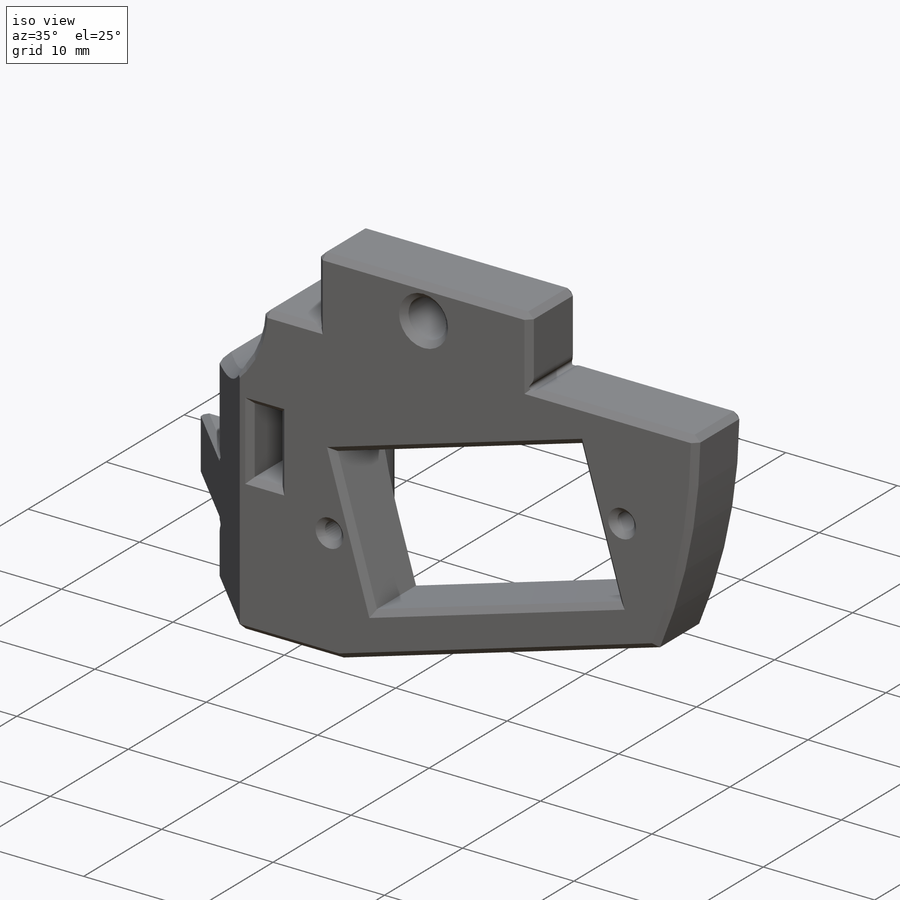
[diagram: iso view]
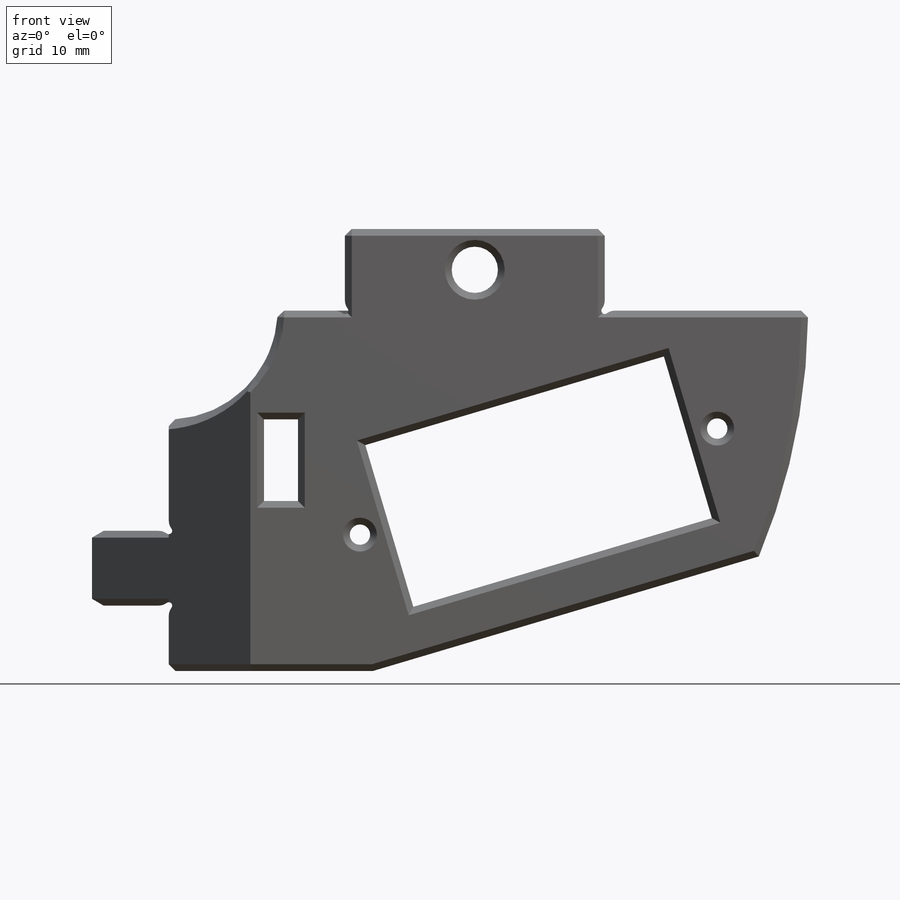
[diagram: front view]
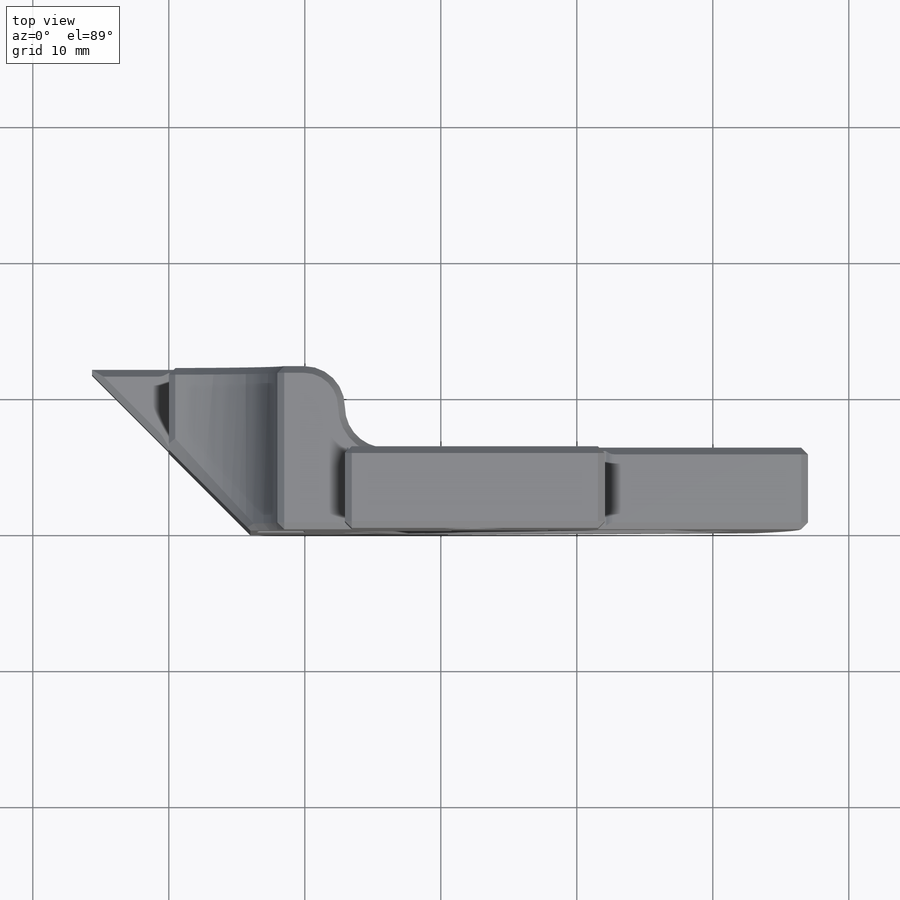
[diagram: top view]
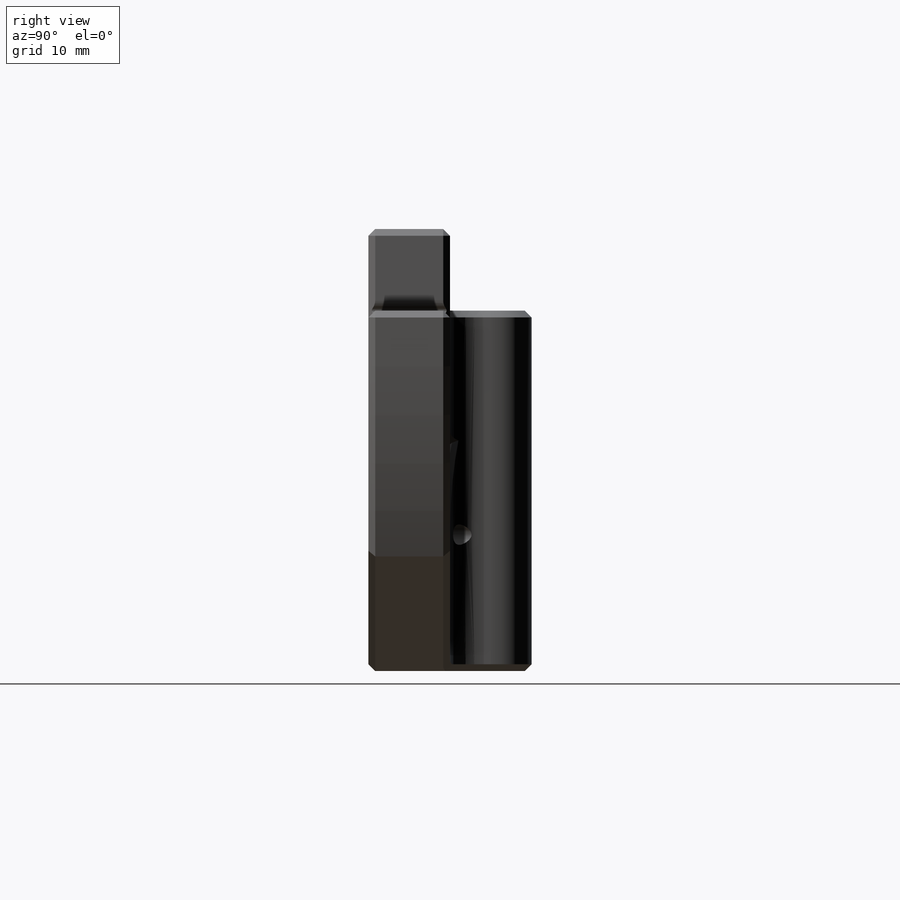
[diagram: right view]
SOLIDWORKS PART (.sldprt)
format: sldprt  version: not decoded by parser v0  size: 1,136,128 bytes
history: native  units: mm
features: sketch x14, cut_extrude x11, extrude x3, fillet x3, chamfer x2, move_body x2, material x1, plane x1 (+12 scaffold rows collapsed; 2 parser-record rows omitted)
feature tree (51):
  scaffold x12  (default folders/planes/origin — collapsed)
  material  "Material <not specified>"
  sketch  "Sketch1"  dims[c1.D1=~35.727519mm c1.D2=73.1125mm c2.D1=26.5mm c2.D2=47.0mm c2.D3=15.0mm c2.D4=17.0mm c2.D5=16.19mm c2.D6=5.5mm c2.D7=6.0mm]
  extrude  "Body"  Depth=6mm
  sketch  "Sketch2"  dims[c1.D1=6.0mm c1.D2=~17.048202mm c2.D1=0.6mm c2.D2=0.6mm]
  extrude  "Top Tab"  Depth=6mm
  sketch  "Sketch12"  dims[D1=15.94mm D2=5.5mm D3=6.0mm]
  extrude  "Boss-Extrude1"  Depth=6mm
  sketch  "Sketch5"  dims[D1=3.4mm D2=11.0mm D3=3.0mm]
  cut_extrude  "Back Screw Hole"  Depth=12mm
  plane  "Plane1"
  sketch  "Sketch4"  dims[c1.D1=3.4mm c1.D2=~6.101694mm c1.D3=~3.120688mm c2.D2=~6.101694mm c3.D2=90.0deg c4.D2=~6.101694mm c5.D2=90.0deg c6.D2=6.0mm c6.D3=2.5mm c6.D4=7.0mm]
  cut_extrude  "Screw and Nut Holes"  [1 undecoded]
  sketch  "Sketch7"  dims[D1=4.0mm D2=4.0mm]
  cut_extrude  "Switch Wire Relief"  [1 undecoded]
  sketch  "Sketch6"  dims[c1.D2=1.5mm c1.D3=1.5mm c1.D1=12.0mm c2.D2=22.5mm c2.D1=0.2mm]
  cut_extrude  "Servo Openings"  [1 undecoded]
  sketch  "Sketch10"  dims[D1=~9.699417mm]
  cut_extrude  "Rounded Corner"  [1 undecoded]
  sketch  "Sketch14"
  cut_extrude  "Cut-Extrude1"  [1 undecoded]
  sketch  "Sketch15"  dims[D1=6.0mm]
  cut_extrude  "Cut-Extrude2"  [1 undecoded]
  cut_extrude  "Cut-Extrude3"  [1 undecoded]
  sketch  "Sketch15<2>"
  sketch  "Sketch20"
  cut_extrude  "Cut-Extrude7"  [1 undecoded]
  fillet  "Fillet1"  Radius=3mm
  chamfer  "Chamfer1"  Distance=0.5mm Angle=45deg
  chamfer  "Chamfer2"  Distance=0.5mm Angle=45deg
  sketch  "Sketch17"  dims[D1=0.5mm]
  cut_extrude  "Cut-Extrude5"  [1 undecoded]
  fillet  "Fillet3"  Radius=1mm
  sketch  "Sketch18"  dims[D1=0.5mm]
  cut_extrude  "Cut-Extrude6"  [1 undecoded]
  fillet  "Fillet4"  Radius=1mm
  parser-record x2  (decoder bookkeeping rows leaked as tree rows — omitted from the tree; the rows remain in map.json)
  move_body  "Body-Move/Copy2"
  move_body  "Body-Move/Copy1"
decode coverage: 20 of 35 modeling features carry decoded parameters
note: ~ marks probable driven/reference dimensions
note: 10 parameter values undecoded
summary: no parameter record found for 10 features
note: suppression state not decoded; provenance and decode notes live in map.json
